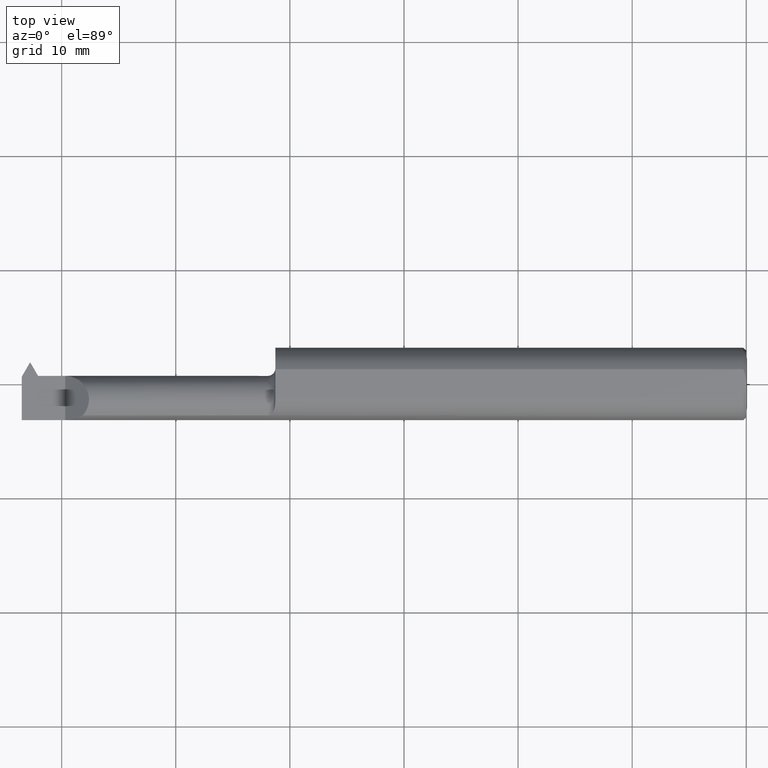
[diagram: clean part render]
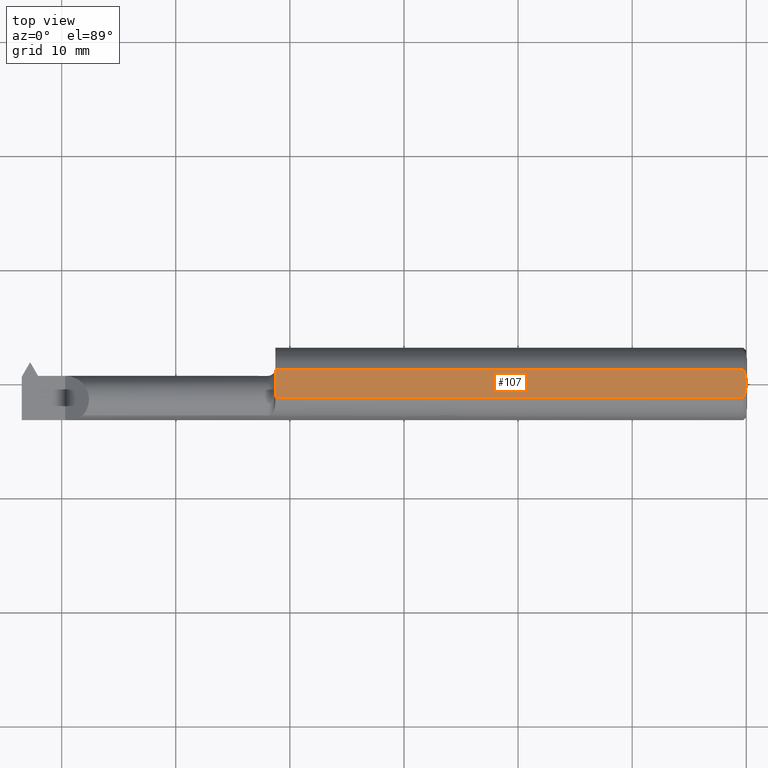
[diagram: same view with one face highlighted and labeled with its STEP entity id]
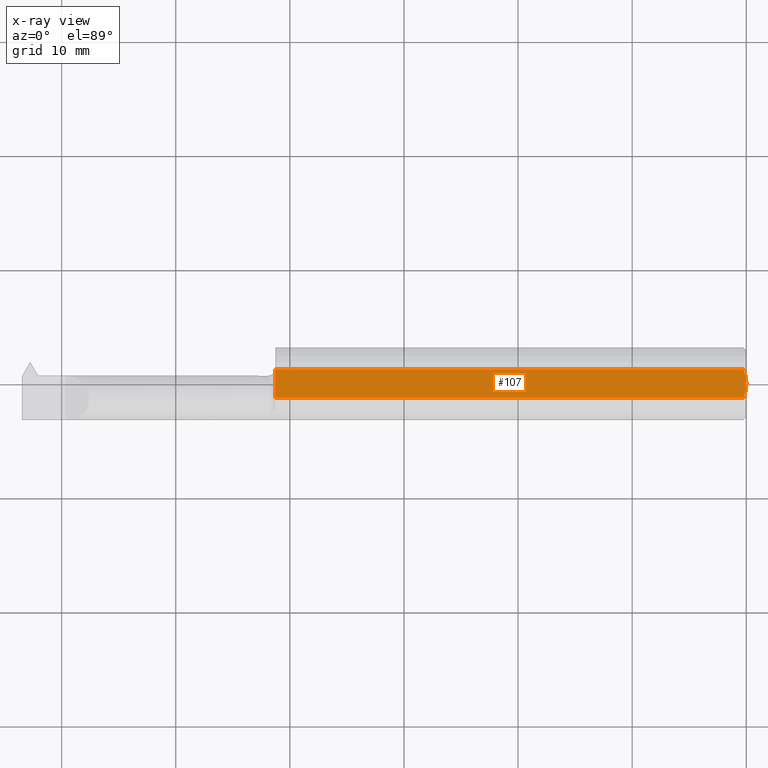
[diagram: x-ray of the same camera — body ghosted, the highlighted face saturated]
A machine part, top view. The second image highlights one B-rep face of the part: STEP entity #107.
The next image is the same camera in x-ray: the body ghosted, the highlighted face saturated — about 0% of this face is hidden behind the body in this view.
In plain terms, the highlighted planar face has unit normal (-0, 0, -1).
Its self-contained STEP definition (entity closure, byte-faithful):
#3 = CARTESIAN_POINT ( 'NONE',  ( -0.009999999999999620304, 0.04895916665957482372, 0.1148500000000000770 ) ) ;
#18 = LINE ( 'NONE', #296, #731 ) ;
#43 = VERTEX_POINT ( 'NONE', #366 ) ;
#56 = AXIS2_PLACEMENT_3D ( 'NONE', #445, #383, #522 ) ;
#57 = EDGE_CURVE ( 'NONE', #523, #43, #499, .T. ) ;
#73 = B_SPLINE_CURVE_WITH_KNOTS ( 'NONE', 3,
 ( #463, #194, #851, #3 ),
 .UNSPECIFIED., .F., .F.,
 ( 4, 4 ),
 ( 0.002328709147988545017, 0.003597800360742833131 ),
 .UNSPECIFIED. ) ;
#107 = ADVANCED_FACE ( 'NONE', ( #239 ), #320, .F. ) ;
#115 = B_SPLINE_CURVE_WITH_KNOTS ( 'NONE', 3,
 ( #180, #120, #387, #245, #507, #775 ),
 .UNSPECIFIED., .F., .F.,
 ( 4, 2, 4 ),
 ( 0.001059891666211667301, 0.001694300407100105942, 0.002328709147988545017 ),
 .UNSPECIFIED. ) ;
#120 = CARTESIAN_POINT ( 'NONE',  ( -0.006957100361670798261, -0.04119951620459557512, 0.1148500000000000631 ) ) ;
#151 = EDGE_CURVE ( 'NONE', #410, #439, #115, .T. ) ;
#155 = LINE ( 'NONE', #416, #603 ) ;
#163 = ORIENTED_EDGE ( 'NONE', *, *, #473, .T. ) ;
#180 = CARTESIAN_POINT ( 'NONE',  ( -0.009999999999999620304, -0.04895916665957435882, 0.1148500000000000770 ) ) ;
#182 = CARTESIAN_POINT ( 'NONE',  ( -3.410902639041114097E-33, 2.195623696957541765E-16, 0.1148500000000000770 ) ) ;
#188 = ORIENTED_EDGE ( 'NONE', *, *, #57, .F. ) ;
#194 = CARTESIAN_POINT ( 'NONE',  ( 4.994169234601781236E-16, 0.01683325733139128325, 0.1148500000000000770 ) ) ;
#216 = ORIENTED_EDGE ( 'NONE', *, *, #336, .T. ) ;
#239 = FACE_OUTER_BOUND ( 'NONE', #751, .T. ) ;
#245 = CARTESIAN_POINT ( 'NONE',  ( -0.0009329797661887221814, -0.01671851415607249550, 0.1148500000000000354 ) ) ;
#248 = VERTEX_POINT ( 'NONE', #526 ) ;
#296 = CARTESIAN_POINT ( 'NONE',  ( -2.500000000000000000, -0.04895916665957467107, 0.1148500000000000770 ) ) ;
#320 = PLANE ( 'NONE',  #56 ) ;
#329 = ORIENTED_EDGE ( 'NONE', *, *, #151, .T. ) ;
#336 = EDGE_CURVE ( 'NONE', #439, #248, #73, .T. ) ;
#366 = CARTESIAN_POINT ( 'NONE',  ( -1.625000000000000222, 0.04895916665957480984, 0.1148500000000000770 ) ) ;
#383 = DIRECTION ( 'NONE',  ( -1.770073149545059408E-33, 1.139409406766874601E-16, -1.000000000000000000 ) ) ;
#387 = CARTESIAN_POINT ( 'NONE',  ( -0.004414493321356822465, -0.03313351293251423635, 0.1148500000000000909 ) ) ;
#389 = CARTESIAN_POINT ( 'NONE',  ( -0.009999999999999620304, -0.04895916665957435882, 0.1148500000000000770 ) ) ;
#410 = VERTEX_POINT ( 'NONE', #389 ) ;
#416 = CARTESIAN_POINT ( 'NONE',  ( -2.500000000000000000, 0.04895916665957451147, 0.1148500000000000770 ) ) ;
#438 = DIRECTION ( 'NONE',  ( -1.301231752219315598E-17, 1.000000000000000000, 1.139409406766874601E-16 ) ) ;
#439 = VERTEX_POINT ( 'NONE', #182 ) ;
#445 = CARTESIAN_POINT ( 'NONE',  ( -2.500000000000000000, 0.1498500000000002053, 0.1148500000000000909 ) ) ;
#463 = CARTESIAN_POINT ( 'NONE',  ( -3.410902639041114097E-33, 2.195623696957541765E-16, 0.1148500000000000770 ) ) ;
#473 = EDGE_CURVE ( 'NONE', #248, #43, #155, .T. ) ;
#499 = LINE ( 'NONE', #571, #732 ) ;
#507 = CARTESIAN_POINT ( 'NONE',  ( 4.865770761176179423E-16, -0.008414813278457659862, 0.1148500000000000631 ) ) ;
#522 = DIRECTION ( 'NONE',  ( 0.000000000000000000, 1.000000000000000000, 1.139409406766874601E-16 ) ) ;
#523 = VERTEX_POINT ( 'NONE', #763 ) ;
#526 = CARTESIAN_POINT ( 'NONE',  ( -0.009999999999999620304, 0.04895916665957482372, 0.1148500000000000770 ) ) ;
#537 = EDGE_CURVE ( 'NONE', #523, #410, #18, .T. ) ;
#571 = CARTESIAN_POINT ( 'NONE',  ( -1.625000000000000222, 0.1498500000000002330, 0.1148500000000000909 ) ) ;
#603 = VECTOR ( 'NONE', #684, 39.37007874015748143 ) ;
#678 = ORIENTED_EDGE ( 'NONE', *, *, #537, .T. ) ;
#684 = DIRECTION ( 'NONE',  ( -1.000000000000000000, -1.224646799147352961E-16, 0.000000000000000000 ) ) ;
#731 = VECTOR ( 'NONE', #760, 39.37007874015748143 ) ;
#732 = VECTOR ( 'NONE', #438, 39.37007874015748143 ) ;
#751 = EDGE_LOOP ( 'NONE', ( #188, #678, #329, #216, #163 ) ) ;
#760 = DIRECTION ( 'NONE',  ( 1.000000000000000000, 1.224646799147352961E-16, -0.000000000000000000 ) ) ;
#763 = CARTESIAN_POINT ( 'NONE',  ( -1.625000000000000222, -0.04895916665957456004, 0.1148500000000000770 ) ) ;
#775 = CARTESIAN_POINT ( 'NONE',  ( -3.410902639041114097E-33, 2.195623696957541765E-16, 0.1148500000000000770 ) ) ;
#851 = CARTESIAN_POINT ( 'NONE',  ( -0.003881058084116052395, 0.03335534922718999540, 0.1148500000000000770 ) ) ;